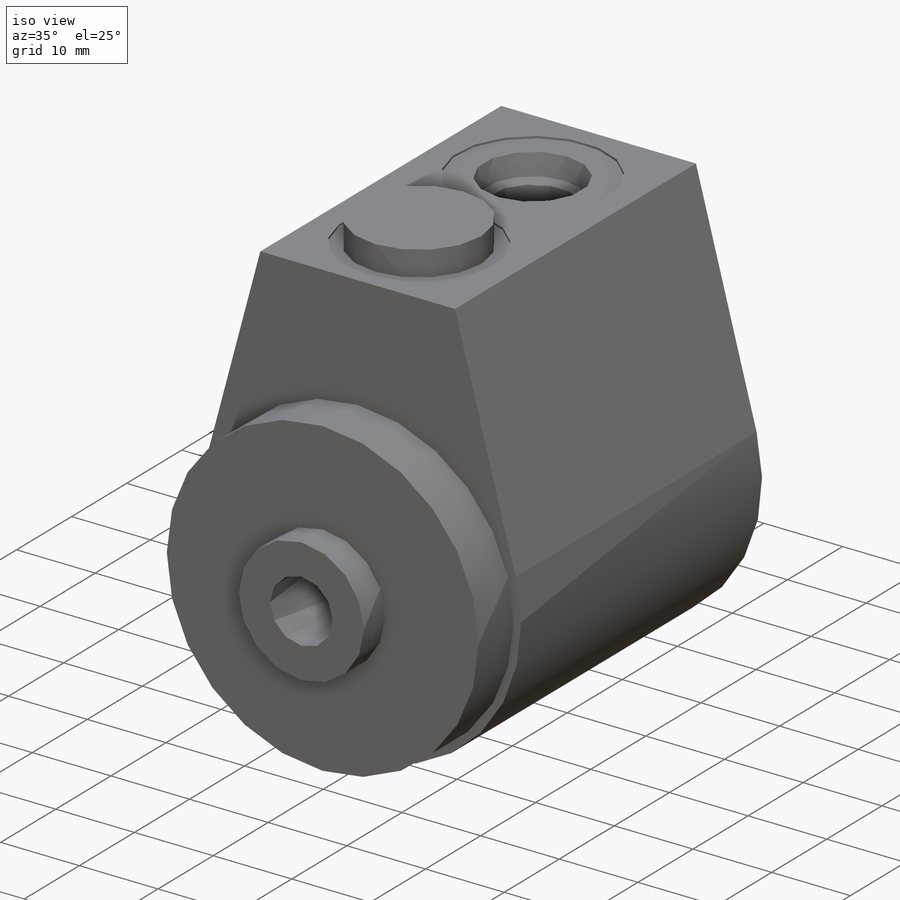
[diagram: iso view]
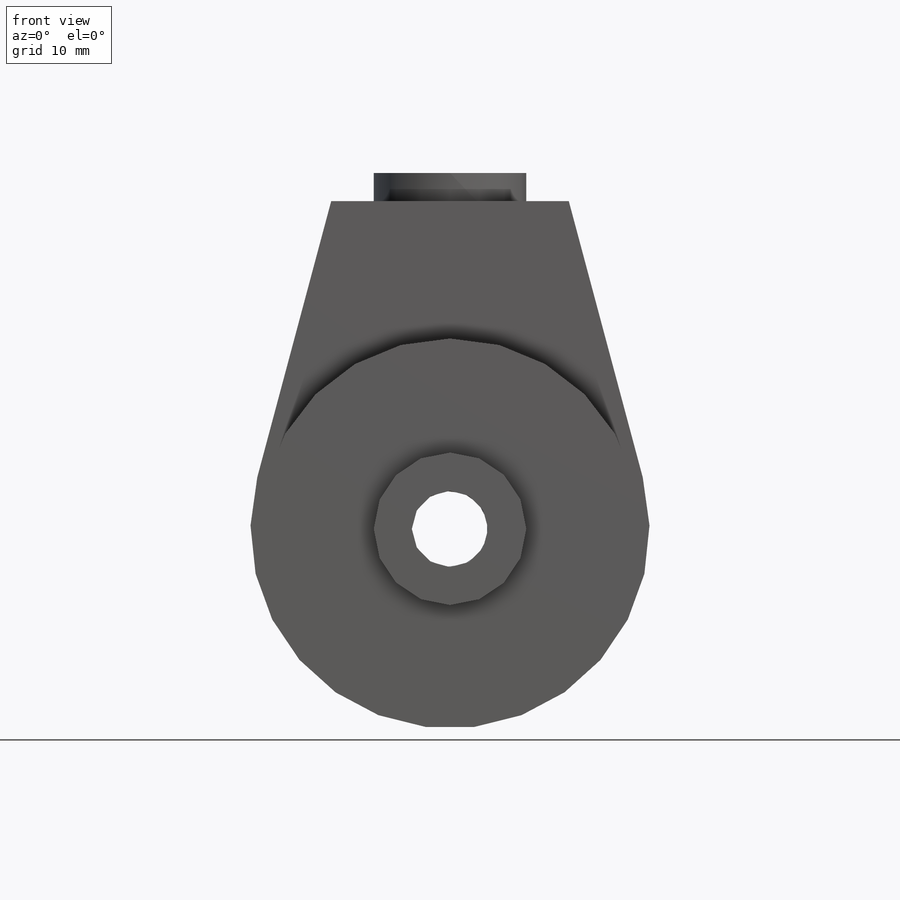
[diagram: front view]
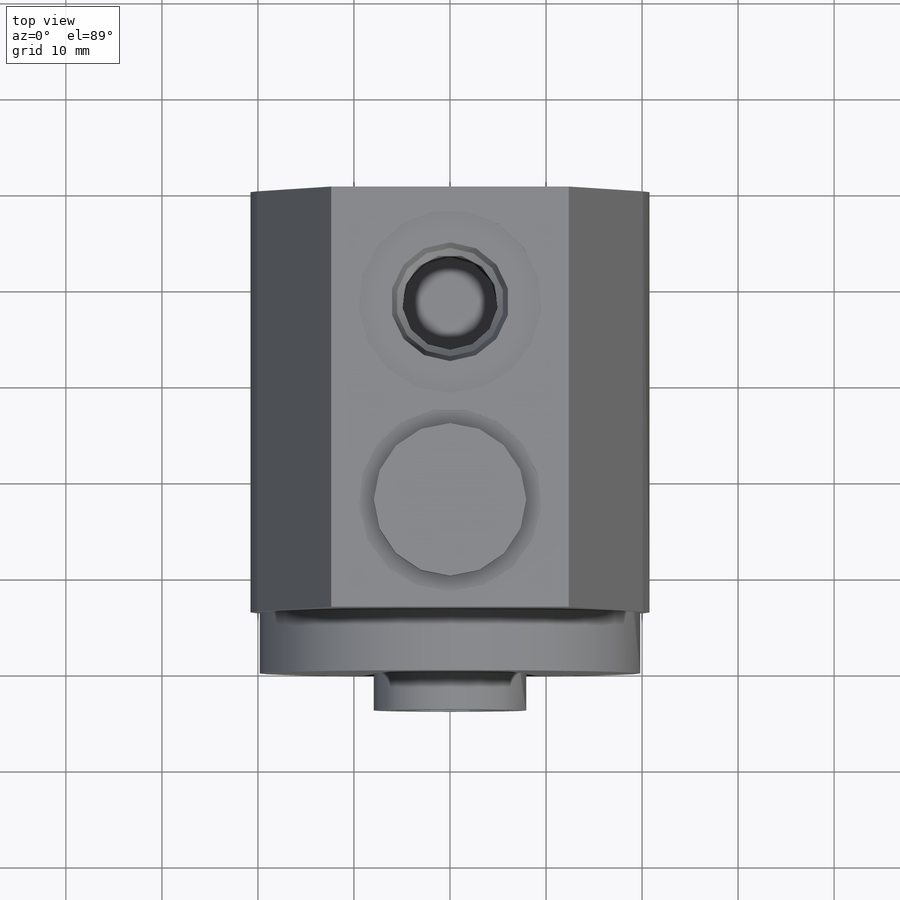
[diagram: top view]
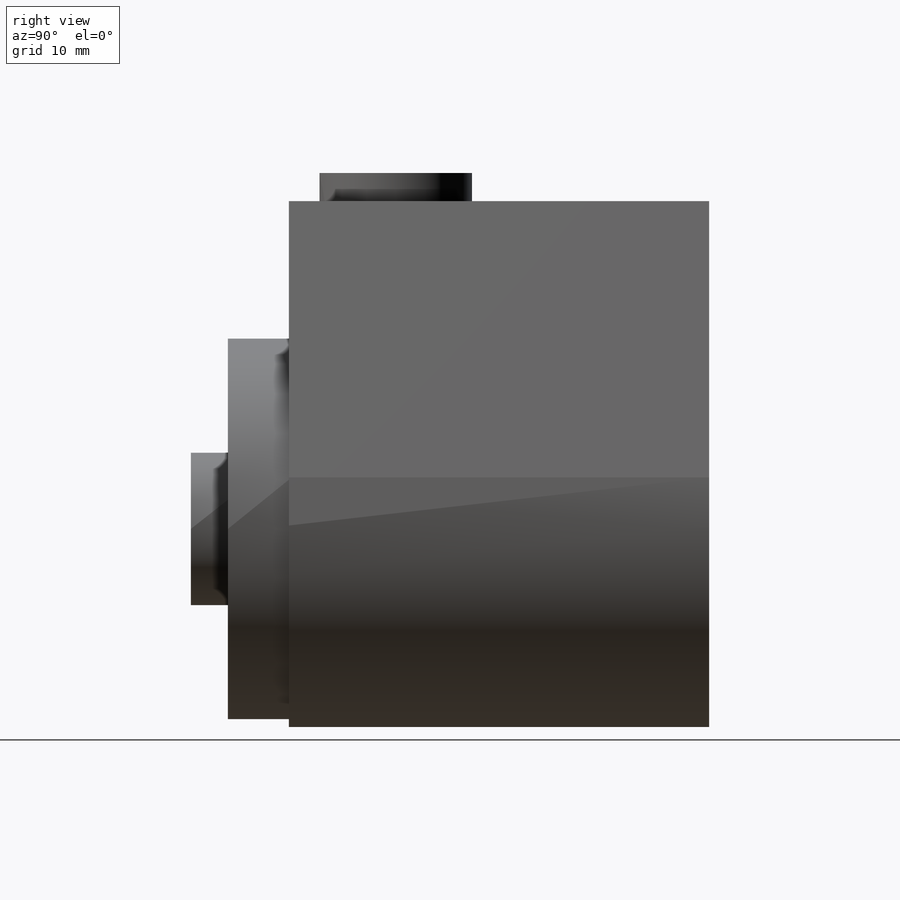
[diagram: right view]
SOLIDWORKS PART (.sldprt)
format: sldprt  version: not decoded by parser v0  size: 273,920 bytes
history: native  units: mm
features: sketch x14, plane x5, hole x4, revolve x3, cut_revolve x2, material x1, extrude x1, pattern_circular x1 (+13 scaffold rows collapsed)
feature tree (44):
  scaffold x13  (default folders/planes/origin — collapsed)
  material  "Alloy Steel"
  plane  "Plane1"  Offset=43.7642mm
  sketch  "Sketch1"  dims[D1=41.5544mm D2=34.1376mm D3=12.3698mm]
  extrude  "Extrude1"  Depth=43.7642mm
  hole  "Hole1"  Diameter=19.05mm Depth=0.254mm
  sketch  "Sketch3"  dims[D1=11.1252mm]
  sketch  "Sketch2"  dims[Diameter=19.05mm Depth=0.254mm]
  hole  "Hole2"  Diameter=20.574mm Depth=4.826mm
  sketch  "Sketch5"
  sketch  "Sketch4"  dims[Diameter=20.574mm Depth=4.826mm]
  plane  "Plane2"
  sketch  "Sketch7"  dims[D1=15.875mm D2=39.624mm D3=6.35mm D4=53.975mm]
  revolve  "Revolve2"  Angle=360deg
  sketch  "Sketch6"  dims[D1=50.1396mm D2=15.875mm]
  revolve  "Revolve1"  Angle=360deg
  plane  "Plane3"
  sketch  "Sketch8"  dims[D1=3.175mm D2=15.875mm]
  revolve  "Revolve3"  Angle=360deg
  plane  "Plane4"  Offset=20.6502mm
  sketch  "Sketch9"
  cut_revolve  "Cut-Revolve1"  Angle=360deg
  plane  "Plane5"  Offset=32.639mm
  sketch  "Sketch10"
  cut_revolve  "Cut-Revolve2"  Angle=360deg
  hole  "Hole3"  Diameter=5.1816mm Depth=10.922mm
  sketch  "Sketch12"  dims[D1=15.875mm]
  sketch  "Sketch11"  dims[Diameter=5.1816mm Depth=10.922mm]
  pattern_circular  "CirPattern1"  Count=2 Angle=360deg
  hole  "Hole5"  Diameter=7.9502mm Depth=50.1396mm
  sketch  "Sketch16"
  sketch  "Sketch15"  dims[Diameter=7.9502mm Depth=50.1396mm C-Drill Diameter=10.3124mm C-Drill Depth=35.052mm C-Drill Angle=118.0deg]
decode coverage: 21 of 25 modeling features carry decoded parameters
summary: Diameter pulled from absorbed wizard sketch
note: suppression state not decoded; provenance and decode notes live in map.json
